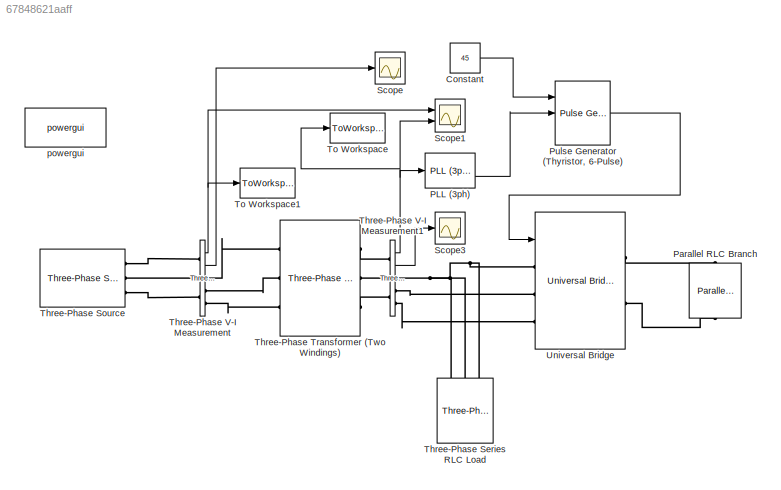
MODEL slx_67848621aaff
KIND model
CONFIG AbsTol = auto
CONFIG EnableMultiTasking = off
CONFIG FixedStep = auto
CONFIG MaxStep = auto
CONFIG MinStep = auto
CONFIG RelTol = 1e-3
CONFIG SampleTimeConstraint = Unconstrained
CONFIG SolverName = VariableStepAuto
CONFIG StartTime = 0.0
CONFIG StopTime = 2
BLOCK [Constant] Constant
  Value = 45
BLOCK [Reference] PLL (3ph)  REF=spsPLL3phLib/PLL
(3ph)
  Ports = [1, 2]
  SourceBlock = spsPLL3phLib/PLL\n(3ph)
  SourceProductBaseCode = PS
  SourceType = PLL (3ph)
BLOCK [Reference] Parallel RLC Branch  REF=spsParallelRLCBranchLib/Parallel RLC Branch
  AttributesFormatString = \n
  NameLocation = left
  Ports = [0, 0, 0, 0, 0, 1, 1]
  SourceBlock = spsParallelRLCBranchLib/Parallel RLC Branch
  SourceProductBaseCode = PS
  SourceType = Parallel RLC Branch
BLOCK [Reference] Pulse Generator (Thyristor, 6-Pulse)  REF=spsPulseGeneratorThyristor6PulseLib/Pulse Generator
(Thyristor, 6-Pulse)
  Ports = [3, 1]
  SourceBlock = spsPulseGeneratorThyristor6PulseLib/Pulse Generator\n(Thyristor, 6-Pulse)
  SourceProductBaseCode = PS
  SourceType = Pulse Generator (Thyristor)
BLOCK [Scope] Scope
  Floating = off
  NumInputPorts = 1
  Ports = [1]
  ScopeSpecificationString = Simulink.scopes.TimeScopeBlockCfg('CurrentConfiguration', extmgr.ConfigurationSet(extmgr.Configuration('Core','General UI',true),extmgr.Configuration('Core','Source UI',true),extmgr.Configuration('Sources','WiredSimulink',true),extmgr.Configuration('Visuals','Time Domain',true,'SerializedDisplays',{struct('MinYLimReal','-345.85564','MaxYLimReal','347.48728','YLabelReal','','MinYLimMag',' 0.00000',...<+1502ch>
BLOCK [Scope] Scope1
  Floating = off
  NumInputPorts = 2
  Ports = [2]
  ScopeSpecificationString = Simulink.scopes.TimeScopeBlockCfg('CurrentConfiguration', extmgr.ConfigurationSet(extmgr.Configuration('Core','General UI',true,'FigureColor',[1 1 1]),extmgr.Configuration('Core','Source UI',true),extmgr.Configuration('Sources','WiredSimulink',true,'DataLoggingVariableName','secondary_wdg','DataLogging',true,'DataLoggingSaveFormat','StructureWithTime'),extmgr.Configuration('Visuals','Time Domain',...<+3061ch>
BLOCK [Scope] Scope3
  Floating = off
  NumInputPorts = 1
  Ports = [1]
  ScopeSpecificationString = Simulink.scopes.TimeScopeBlockCfg('CurrentConfiguration', extmgr.ConfigurationSet(extmgr.Configuration('Core','General UI',true),extmgr.Configuration('Core','Source UI',true),extmgr.Configuration('Sources','WiredSimulink',true,'DataLoggingVariableName','ScopeData2'),extmgr.Configuration('Visuals','Time Domain',true,'SerializedDisplays',{struct('MinYLimReal','-7943.24519','MaxYLimReal','7981.35931'...<+1498ch>
BLOCK [Reference] Three-Phase Series RLC Load  REF=spsThreePhaseSeriesRLCLoadLib/Three-Phase
Series RLC Load
  AttributesFormatString = \n
  Ports = [0, 0, 0, 0, 0, 3]
  SourceBlock = spsThreePhaseSeriesRLCLoadLib/Three-Phase\nSeries RLC Load
  SourceProductBaseCode = PS
  SourceType = Three-Phase Series RLC Load
BLOCK [Reference] Three-Phase Source  REF=spsThreePhaseSourceLib/Three-Phase Source
  Ports = [0, 0, 0, 0, 0, 0, 3]
  SourceBlock = spsThreePhaseSourceLib/Three-Phase Source
  SourceProductBaseCode = PS
  SourceType = Three-Phase Source
BLOCK [Reference] Three-Phase Transformer (Two Windings)  REF=spsThreePhaseTransformerTwoWindingsLib/Three-Phase
Transformer
(Two Windings)
  Ports = [0, 0, 0, 0, 0, 3, 3]
  SourceBlock = spsThreePhaseTransformerTwoWindingsLib/Three-Phase\nTransformer\n(Two Windings)
  SourceProductBaseCode = PS
  SourceType = Three-Phase Transformer (Two Windings)
BLOCK [Reference] Three-Phase V-I Measurement  REF=spsThreePhaseVIMeasurementLib/Three-Phase
V-I Measurement
  Ports = [0, 2, 0, 0, 0, 3, 3]
  SourceBlock = spsThreePhaseVIMeasurementLib/Three-Phase\nV-I Measurement
  SourceProductBaseCode = PS
  SourceType = Three-Phase VI Measurement
BLOCK [Reference] Three-Phase V-I Measurement1  REF=spsThreePhaseVIMeasurementLib/Three-Phase
V-I Measurement
  Ports = [0, 2, 0, 0, 0, 3, 3]
  SourceBlock = spsThreePhaseVIMeasurementLib/Three-Phase\nV-I Measurement
  SourceProductBaseCode = PS
  SourceType = Three-Phase VI Measurement
BLOCK [ToWorkspace] To Workspace
  FixptAsFi = on
  MaxDataPoints = inf
  Ports = [1]
  SampleTime = -1
  SaveFormat = Structure With Time
  VariableName = simout_2
BLOCK [ToWorkspace] To Workspace1
  FixptAsFi = on
  MaxDataPoints = inf
  Ports = [1]
  SampleTime = -1
  SaveFormat = Structure With Time
  VariableName = simout_1
BLOCK [Reference] Universal Bridge  REF=spsUniversalBridgeLib/Universal Bridge
  Ports = [1, 0, 0, 0, 0, 3, 2]
  SourceBlock = spsUniversalBridgeLib/Universal Bridge
  SourceProductBaseCode = PS
  SourceType = Universal Bridge
BLOCK [Reference] powergui  REF=spspowerguiLib/powergui
  Ports = []
  Priority = 1
  SourceBlock = spspowerguiLib/powergui
  SourceProductBaseCode = PS
  SourceType = PSB option menu block
LINE Constant:1 -> Pulse Generator (Thyristor, 6-Pulse):1
LINE PLL (3ph):2 -> Pulse Generator (Thyristor, 6-Pulse):2
LINE Pulse Generator (Thyristor, 6-Pulse):1 -> Universal Bridge:1
NET Three-Phase V-I Measurement1:1 -> PLL (3ph):1, Scope1:2, To Workspace:1
LINE Three-Phase V-I Measurement1:2 -> Scope3:1
NET Three-Phase V-I Measurement:1 -> Scope1:1, To Workspace1:1
LINE Three-Phase V-I Measurement:2 -> Scope:1
PLINE Parallel RLC Branch:LConn1 -- Universal Bridge:RConn1
PLINE Parallel RLC Branch:RConn1 -- Universal Bridge:RConn2
PNET net1: Three-Phase Series RLC Load:LConn1 -- Three-Phase Series RLC Load:LConn2 -- Three-Phase Series RLC Load:LConn3 -- Three-Phase V-I Measurement1:RConn1 -- Universal Bridge:LConn1
PLINE Three-Phase Source:RConn1 -- Three-Phase V-I Measurement:LConn1
PLINE Three-Phase Source:RConn2 -- Three-Phase V-I Measurement:LConn2
PLINE Three-Phase Source:RConn3 -- Three-Phase V-I Measurement:LConn3
PLINE Three-Phase Transformer (Two Windings):LConn1 -- Three-Phase V-I Measurement:RConn1
PLINE Three-Phase Transformer (Two Windings):LConn2 -- Three-Phase V-I Measurement:RConn2
PLINE Three-Phase Transformer (Two Windings):LConn3 -- Three-Phase V-I Measurement:RConn3
PLINE Three-Phase Transformer (Two Windings):RConn1 -- Three-Phase V-I Measurement1:LConn1
PLINE Three-Phase Transformer (Two Windings):RConn2 -- Three-Phase V-I Measurement1:LConn2
PLINE Three-Phase Transformer (Two Windings):RConn3 -- Three-Phase V-I Measurement1:LConn3
PLINE Three-Phase V-I Measurement1:RConn2 -- Universal Bridge:LConn2
PLINE Three-Phase V-I Measurement1:RConn3 -- Universal Bridge:LConn3
note: NET lines group one-source signal fan-out (src -> all destinations, sorted); 1:1 wires keep LINE; PNET lines group multi-terminal physical nets as a canonical sorted terminal list (undirected conserving connections); 2-terminal nets keep the pairwise PLINE form
